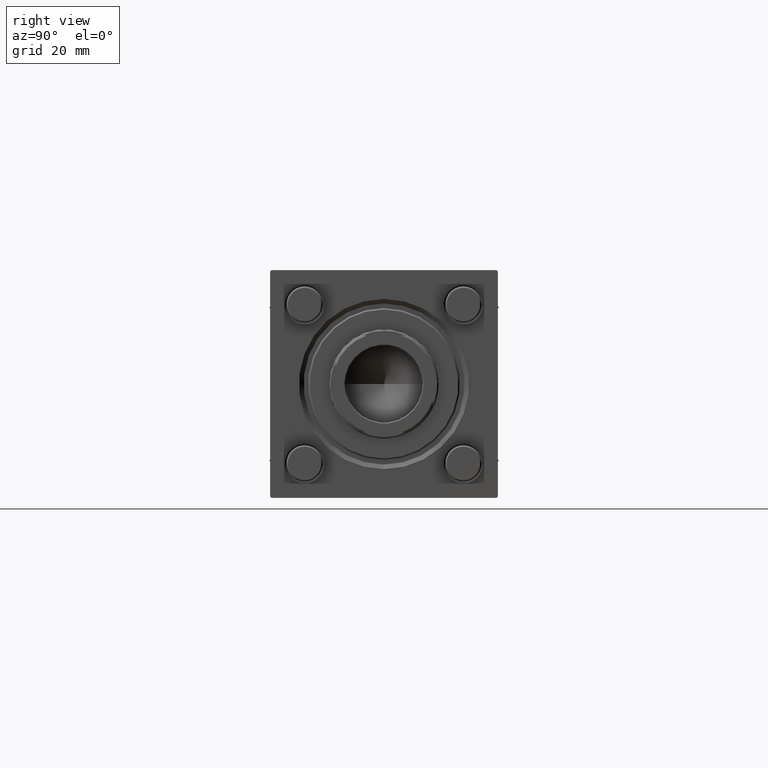
[diagram: clean part render]
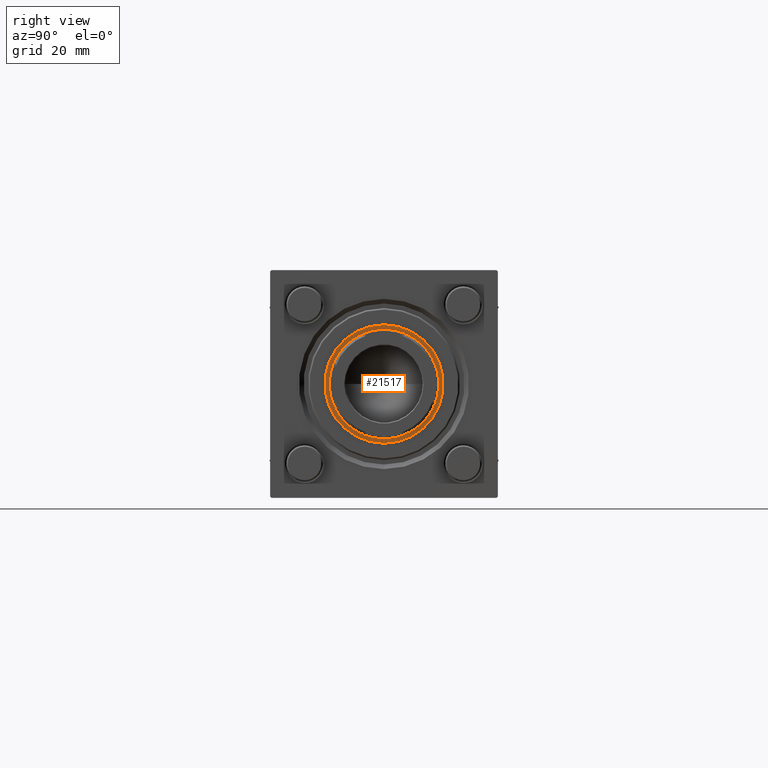
[diagram: same view with one face highlighted and labeled with its STEP entity id]
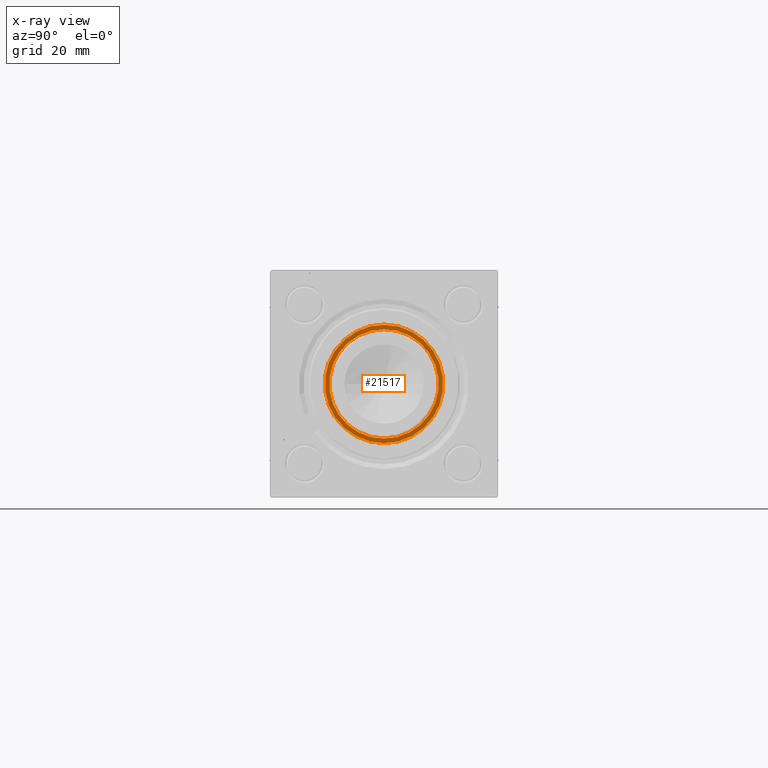
[diagram: x-ray of the same camera — body ghosted, the highlighted face saturated]
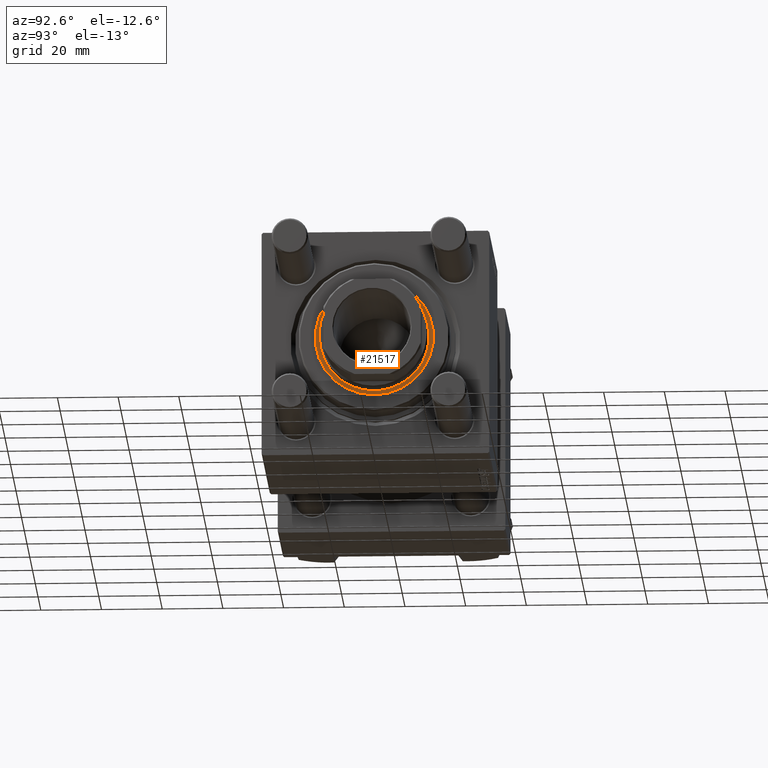
[diagram: same view with one face highlighted and labeled with its STEP entity id]
A machine part, right view. The second image highlights one B-rep face of the part: STEP entity #21517.
The next image is the same camera in x-ray: the body ghosted, the highlighted face saturated — about 0% of this face is hidden behind the body in this view.
A second angle (auxiliary view) of the same face is appended — the face is thin or edge-on in the first view.
In plain terms, the highlighted planar face has unit normal (1, 0, 0).
Its self-contained STEP definition (entity closure, byte-faithful):
#236 = CARTESIAN_POINT ( 'NONE',  ( 0.000000000000000000, 0.000000000000000000, 37.19999999999999574 ) ) ;
#355 = CIRCLE ( 'NONE', #18648, 18.00000000000000000 ) ;
#1238 = DIRECTION ( 'NONE',  ( 0.000000000000000000, 0.000000000000000000, 1.000000000000000000 ) ) ;
#1485 = ORIENTED_EDGE ( 'NONE', *, *, #56431, .T. ) ;
#2482 = ORIENTED_EDGE ( 'NONE', *, *, #21591, .T. ) ;
#2744 = FACE_BOUND ( 'NONE', #26072, .T. ) ;
#3594 = FACE_OUTER_BOUND ( 'NONE', #30284, .T. ) ;
#3972 = DIRECTION ( 'NONE',  ( -0.000000000000000000, -0.000000000000000000, -1.000000000000000000 ) ) ;
#5513 = EDGE_CURVE ( 'NONE', #26446, #37556, #13746, .T. ) ;
#7784 = AXIS2_PLACEMENT_3D ( 'NONE', #236, #3972, #26052 ) ;
#13260 = DIRECTION ( 'NONE',  ( -0.000000000000000000, -0.000000000000000000, -1.000000000000000000 ) ) ;
#13746 = CIRCLE ( 'NONE', #46747, 19.50000000000000000 ) ;
#16515 = DIRECTION ( 'NONE',  ( 0.000000000000000000, 0.000000000000000000, 1.000000000000000000 ) ) ;
#16933 = EDGE_CURVE ( 'NONE', #39660, #34671, #355, .T. ) ;
#18648 = AXIS2_PLACEMENT_3D ( 'NONE', #52539, #13260, #30759 ) ;
#19963 = DIRECTION ( 'NONE',  ( 1.000000000000000000, 0.000000000000000000, -0.000000000000000000 ) ) ;
#20145 = CARTESIAN_POINT ( 'NONE',  ( -18.00000000000000000, 2.204364238465235428E-15, 37.19999999999999574 ) ) ;
#21517 = ADVANCED_FACE ( 'NONE', ( #3594, #2744 ), #24554, .T. ) ;
#21591 = EDGE_CURVE ( 'NONE', #37556, #26446, #56184, .T. ) ;
#23869 = DIRECTION ( 'NONE',  ( 1.000000000000000000, 0.000000000000000000, 0.000000000000000000 ) ) ;
#24554 = PLANE ( 'NONE',  #55277 ) ;
#26052 = DIRECTION ( 'NONE',  ( 1.000000000000000000, 0.000000000000000000, 0.000000000000000000 ) ) ;
#26072 = EDGE_LOOP ( 'NONE', ( #1485, #31883 ) ) ;
#26357 = ORIENTED_EDGE ( 'NONE', *, *, #5513, .T. ) ;
#26446 = VERTEX_POINT ( 'NONE', #33402 ) ;
#29703 = DIRECTION ( 'NONE',  ( 0.000000000000000000, 0.000000000000000000, 1.000000000000000000 ) ) ;
#30284 = EDGE_LOOP ( 'NONE', ( #26357, #2482 ) ) ;
#30759 = DIRECTION ( 'NONE',  ( 1.000000000000000000, 0.000000000000000000, 0.000000000000000000 ) ) ;
#31883 = ORIENTED_EDGE ( 'NONE', *, *, #16933, .T. ) ;
#33402 = CARTESIAN_POINT ( 'NONE',  ( 19.50000000000000000, 0.000000000000000000, 37.19999999999999574 ) ) ;
#34002 = DIRECTION ( 'NONE',  ( 1.000000000000000000, 0.000000000000000000, 0.000000000000000000 ) ) ;
#34671 = VERTEX_POINT ( 'NONE', #54488 ) ;
#37556 = VERTEX_POINT ( 'NONE', #39287 ) ;
#39287 = CARTESIAN_POINT ( 'NONE',  ( -19.50000000000000000, 2.388061258337338939E-15, 37.19999999999999574 ) ) ;
#39660 = VERTEX_POINT ( 'NONE', #20145 ) ;
#40523 = CARTESIAN_POINT ( 'NONE',  ( 0.000000000000000000, 0.000000000000000000, 37.19999999999999574 ) ) ;
#40733 = CIRCLE ( 'NONE', #7784, 18.00000000000000000 ) ;
#41522 = AXIS2_PLACEMENT_3D ( 'NONE', #42610, #16515, #34002 ) ;
#42610 = CARTESIAN_POINT ( 'NONE',  ( 0.000000000000000000, 0.000000000000000000, 37.19999999999999574 ) ) ;
#42890 = CARTESIAN_POINT ( 'NONE',  ( 0.000000000000000000, 0.000000000000000000, 37.19999999999999574 ) ) ;
#46747 = AXIS2_PLACEMENT_3D ( 'NONE', #40523, #1238, #23869 ) ;
#52539 = CARTESIAN_POINT ( 'NONE',  ( 0.000000000000000000, 0.000000000000000000, 37.19999999999999574 ) ) ;
#54488 = CARTESIAN_POINT ( 'NONE',  ( 18.00000000000000000, 0.000000000000000000, 37.19999999999999574 ) ) ;
#55277 = AXIS2_PLACEMENT_3D ( 'NONE', #42890, #29703, #19963 ) ;
#56184 = CIRCLE ( 'NONE', #41522, 19.50000000000000000 ) ;
#56431 = EDGE_CURVE ( 'NONE', #34671, #39660, #40733, .T. ) ;